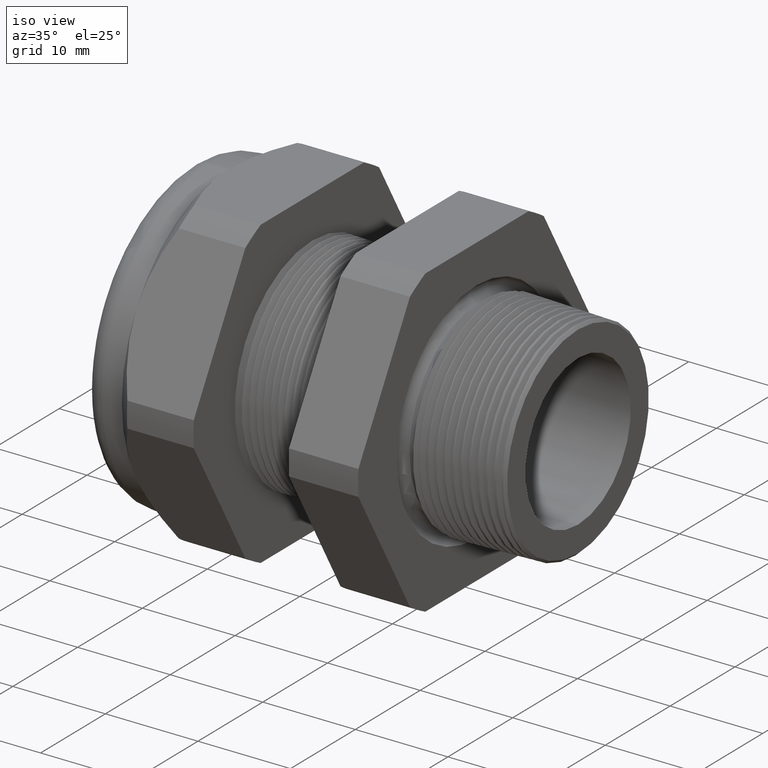
[diagram: clean part render]
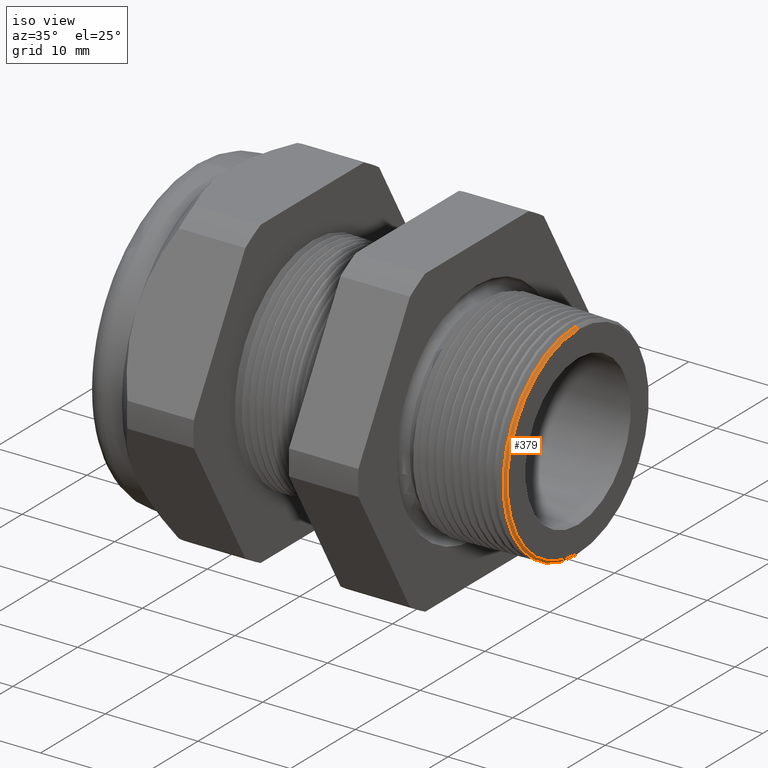
[diagram: same view with one face highlighted and labeled with its STEP entity id]
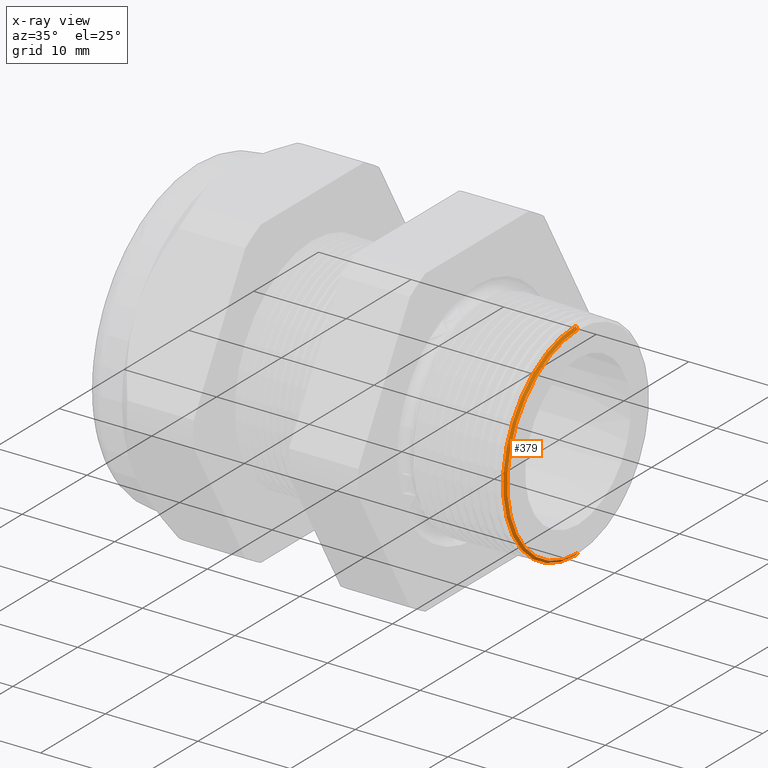
[diagram: x-ray of the same camera — body ghosted, the highlighted face saturated]
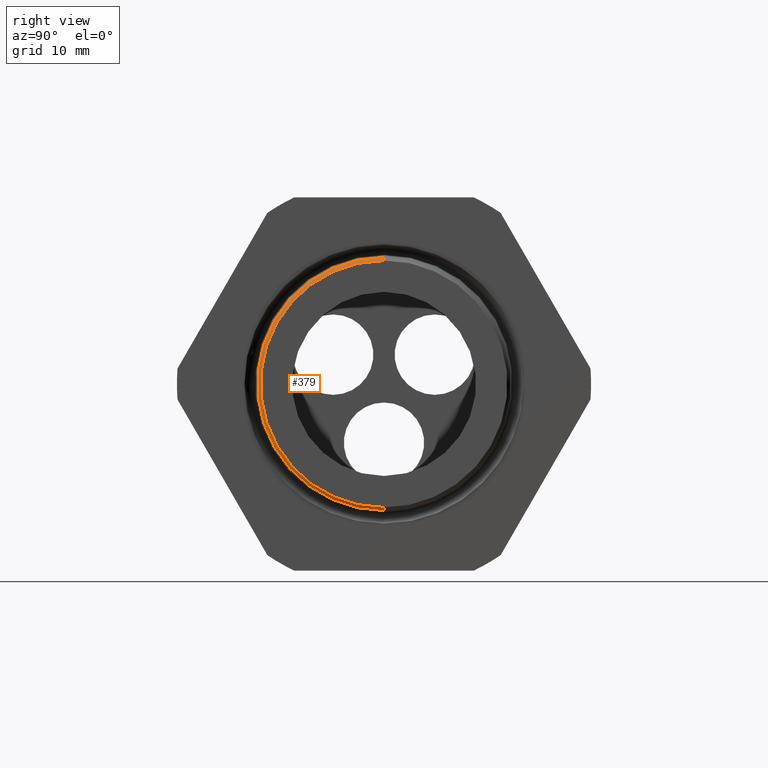
[diagram: same view with one face highlighted and labeled with its STEP entity id]
A machine part, iso view. The second image highlights one B-rep face of the part: STEP entity #379.
The next image is the same camera in x-ray: the body ghosted, the highlighted face saturated — about 0% of this face is hidden behind the body in this view.
A second angle (right view) of the same face is appended — the face is thin or edge-on in the first view.
In plain terms, the highlighted conical surface has half-angle 46.5 deg.
Its self-contained STEP definition (entity closure, byte-faithful):
#379 = ADVANCED_FACE ( 'NONE', ( #2329 ), #2328, .T. ) ;
#380 = EDGE_LOOP ( 'NONE', ( #381, #382, #383, #384 ) ) ;
#381 = ORIENTED_EDGE ( 'NONE', *, *, #1301, .F. ) ;
#382 = ORIENTED_EDGE ( 'NONE', *, *, #2620, .F. ) ;
#383 = ORIENTED_EDGE ( 'NONE', *, *, #1313, .T. ) ;
#384 = ORIENTED_EDGE ( 'NONE', *, *, #5690, .F. ) ;
#1266 = VERTEX_POINT ( 'NONE', #4073 ) ;
#1294 = VERTEX_POINT ( 'NONE', #4142 ) ;
#1301 = EDGE_CURVE ( 'NONE', #1266, #1302, #4135, .T. ) ;
#1302 = VERTEX_POINT ( 'NONE', #4126 ) ;
#1309 = VERTEX_POINT ( 'NONE', #4174 ) ;
#1313 = EDGE_CURVE ( 'NONE', #1294, #1309, #4173, .T. ) ;
#2324 = DIRECTION ( 'NONE',  ( 0.0000000000000000000, 0.0000000000000000000, 1.000000000000000000 ) ) ;
#2325 = DIRECTION ( 'NONE',  ( -1.000000000000000000, 0.0000000000000000000, 0.0000000000000000000 ) ) ;
#2326 = AXIS2_PLACEMENT_3D ( 'NONE', #2335, #2325, #2324 ) ;
#2328 = CONICAL_SURFACE ( 'NONE', #2326, 0.4301292403640452600, 0.8115781021773567100 ) ;
#2329 = FACE_OUTER_BOUND ( 'NONE', #380, .T. ) ;
#2335 = CARTESIAN_POINT ( 'NONE',  ( 0.1200000000000000200, 0.0000000000000000000, 0.0000000000000000000 ) ) ;
#2620 = EDGE_CURVE ( 'NONE', #1294, #1266, #4873, .T. ) ;
#4073 = CARTESIAN_POINT ( 'NONE',  ( 0.1200000000000000200, 5.332067285935767100E-017, -0.4301292403640452600 ) ) ;
#4126 = CARTESIAN_POINT ( 'NONE',  ( 0.1100034267502447600, 5.397605562075697500E-017, -0.4406634305755528500 ) ) ;
#4127 = DIRECTION ( 'NONE',  ( -0.6883545756937586900, 8.883274016437172300E-017, -0.7253743710122830800 ) ) ;
#4128 = VECTOR ( 'NONE', #4127, 39.37007874015748900 ) ;
#4129 = CARTESIAN_POINT ( 'NONE',  ( 0.1200000000000000200, 5.267563974315105800E-017, -0.4301292403640452600 ) ) ;
#4135 = LINE ( 'NONE', #4129, #4128 ) ;
#4142 = CARTESIAN_POINT ( 'NONE',  ( 0.1200000000000000200, 0.0000000000000000000, 0.4301292403640452600 ) ) ;
#4165 = DIRECTION ( 'NONE',  ( -0.6883545756937586900, 0.0000000000000000000, 0.7253743710122830800 ) ) ;
#4166 = VECTOR ( 'NONE', #4165, 39.37007874015748900 ) ;
#4167 = CARTESIAN_POINT ( 'NONE',  ( 0.1200000000000000200, 0.0000000000000000000, 0.4301292403640452600 ) ) ;
#4173 = LINE ( 'NONE', #4167, #4166 ) ;
#4174 = CARTESIAN_POINT ( 'NONE',  ( 0.1100034267502447600, 0.0000000000000000000, 0.4406634305755528500 ) ) ;
#4814 = CARTESIAN_POINT ( 'NONE',  ( 0.1200000000000000200, 0.0000000000000000000, 0.0000000000000000000 ) ) ;
#4870 = DIRECTION ( 'NONE',  ( 0.0000000000000000000, 0.0000000000000000000, -1.000000000000000000 ) ) ;
#4871 = DIRECTION ( 'NONE',  ( 1.000000000000000000, 0.0000000000000000000, 0.0000000000000000000 ) ) ;
#4872 = AXIS2_PLACEMENT_3D ( 'NONE', #4814, #4871, #4870 ) ;
#4873 = CIRCLE ( 'NONE', #4872, 0.4301292403640452600 ) ;
#5514 = DIRECTION ( 'NONE',  ( 0.0000000000000000000, 0.0000000000000000000, -1.000000000000000000 ) ) ;
#5515 = DIRECTION ( 'NONE',  ( -1.000000000000000000, 0.0000000000000000000, 0.0000000000000000000 ) ) ;
#5516 = CARTESIAN_POINT ( 'NONE',  ( 0.1100034267502447600, 0.0000000000000000000, 0.0000000000000000000 ) ) ;
#5517 = AXIS2_PLACEMENT_3D ( 'NONE', #5516, #5515, #5514 ) ;
#5522 = CIRCLE ( 'NONE', #5517, 0.4406634305755528500 ) ;
#5690 = EDGE_CURVE ( 'NONE', #1302, #1309, #5522, .T. ) ;